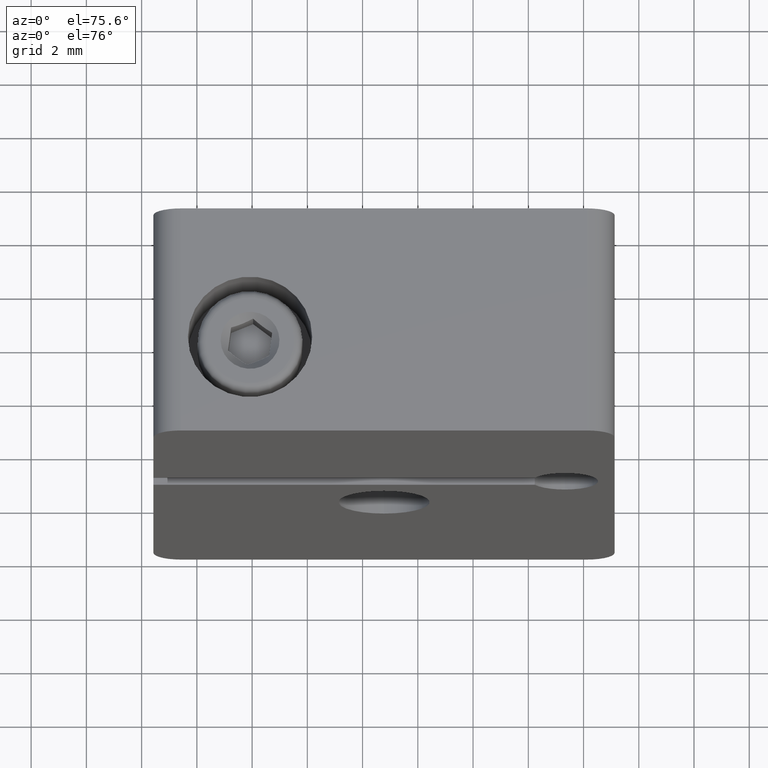
[diagram: clean part render]
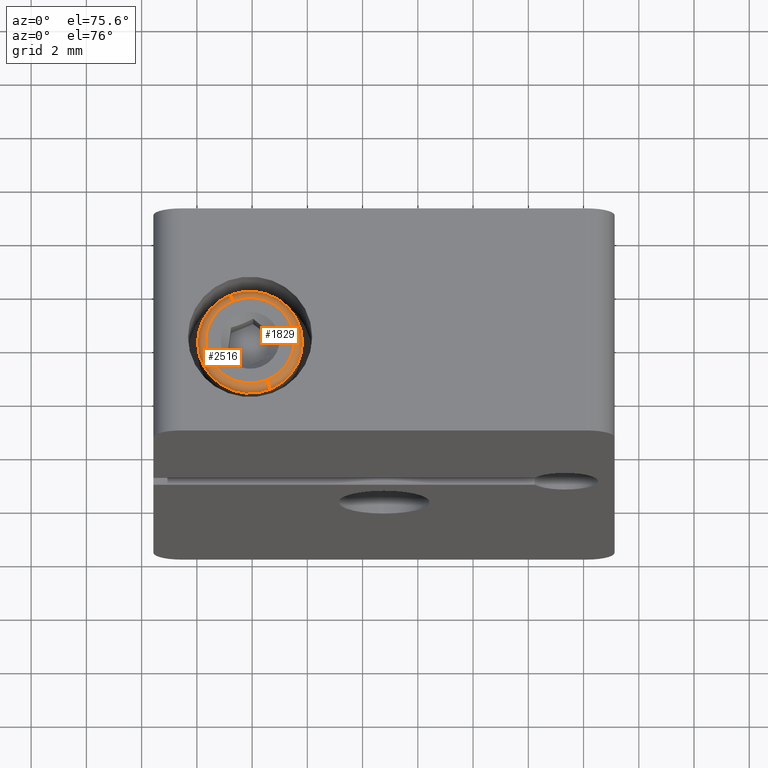
[diagram: same view with one multi-face feature highlighted, each face labeled with its STEP entity id]
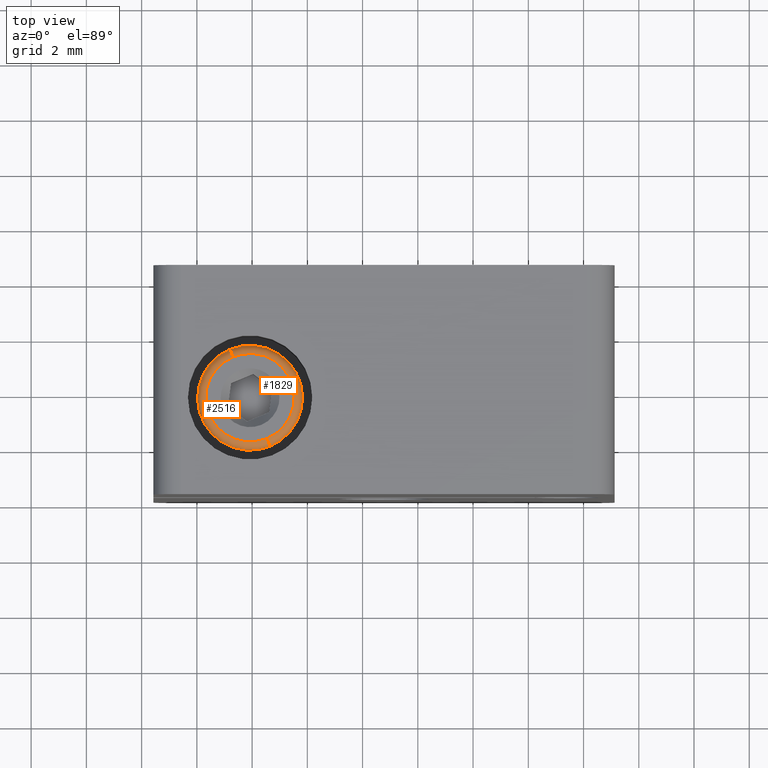
[diagram: same view with one multi-face feature highlighted, each face labeled with its STEP entity id]
A machine part, auxiliary view. The highlighted faces form ONE feature: a constant-radius fillet chain: 2 tangent blend faces with common blend radius 0.3 mm. The faces share edges in the B-rep.
A second angle (top view) of the same feature is appended — it is thin or edge-on in the first view.
Their STEP definitions:
[1] entity #2516 (Torus):
#16 = AXIS2_PLACEMENT_3D ( 'NONE', #714, #756, #2334 ) ;
#148 = EDGE_CURVE ( 'NONE', #622, #1344, #607, .T. ) ;
#152 = CARTESIAN_POINT ( 'NONE',  ( 0.000000000000000000, 1.700000000000000178, 0.000000000000000000 ) ) ;
#157 = DIRECTION ( 'NONE',  ( 0.000000000000000000, 0.000000000000000000, 1.000000000000000000 ) ) ;
#182 = DIRECTION ( 'NONE',  ( 0.000000000000000000, 1.000000000000000000, 0.000000000000000000 ) ) ;
#316 = CARTESIAN_POINT ( 'NONE',  ( 2.326828918379970872E-16, 1.700000000000000178, 1.899999999999999689 ) ) ;
#358 = AXIS2_PLACEMENT_3D ( 'NONE', #555, #2430, #1770 ) ;
#520 = VERTEX_POINT ( 'NONE', #2351 ) ;
#543 = EDGE_CURVE ( 'NONE', #1856, #622, #2599, .T. ) ;
#555 = CARTESIAN_POINT ( 'NONE',  ( 0.000000000000000000, 2.000000000000000000, 0.000000000000000000 ) ) ;
#607 = CIRCLE ( 'NONE', #358, 1.599999999999999867 ) ;
#622 = VERTEX_POINT ( 'NONE', #1705 ) ;
#625 = ORIENTED_EDGE ( 'NONE', *, *, #1349, .T. ) ;
#690 = ORIENTED_EDGE ( 'NONE', *, *, #543, .F. ) ;
#714 = CARTESIAN_POINT ( 'NONE',  ( 0.000000000000000000, 1.700000000000000178, 1.599999999999999867 ) ) ;
#725 = DIRECTION ( 'NONE',  ( 1.224646799147353947E-16, 0.000000000000000000, -1.000000000000000000 ) ) ;
#756 = DIRECTION ( 'NONE',  ( -1.000000000000000000, 0.000000000000000000, 0.000000000000000000 ) ) ;
#949 = CARTESIAN_POINT ( 'NONE',  ( 2.143131898507867804E-16, 2.000000000000000000, -1.599999999999999867 ) ) ;
#1344 = VERTEX_POINT ( 'NONE', #949 ) ;
#1349 = EDGE_CURVE ( 'NONE', #520, #1344, #2937, .T. ) ;
#1459 = EDGE_LOOP ( 'NONE', ( #2593, #625, #1588, #690 ) ) ;
#1575 = DIRECTION ( 'NONE',  ( 0.000000000000000000, 0.000000000000000000, 1.000000000000000000 ) ) ;
#1588 = ORIENTED_EDGE ( 'NONE', *, *, #148, .F. ) ;
#1705 = CARTESIAN_POINT ( 'NONE',  ( 0.000000000000000000, 2.000000000000000000, 1.599999999999999867 ) ) ;
#1770 = DIRECTION ( 'NONE',  ( 0.000000000000000000, 0.000000000000000000, 1.000000000000000000 ) ) ;
#1824 = TOROIDAL_SURFACE ( 'NONE', #3073, 1.599999999999999867, 0.2999999999999999889 ) ;
#1856 = VERTEX_POINT ( 'NONE', #316 ) ;
#1911 = DIRECTION ( 'NONE',  ( 1.000000000000000000, -0.000000000000000000, 1.224646799147353207E-16 ) ) ;
#2019 = EDGE_CURVE ( 'NONE', #520, #1856, #2827, .T. ) ;
#2029 = AXIS2_PLACEMENT_3D ( 'NONE', #2807, #3054, #157 ) ;
#2145 = CARTESIAN_POINT ( 'NONE',  ( 1.959434878635764984E-16, 1.700000000000000178, -1.599999999999999867 ) ) ;
#2288 = FACE_OUTER_BOUND ( 'NONE', #1459, .T. ) ;
#2334 = DIRECTION ( 'NONE',  ( 0.000000000000000000, 0.000000000000000000, 1.000000000000000000 ) ) ;
#2351 = CARTESIAN_POINT ( 'NONE',  ( 0.000000000000000000, 1.700000000000000178, -1.899999999999999689 ) ) ;
#2430 = DIRECTION ( 'NONE',  ( 0.000000000000000000, 1.000000000000000000, 0.000000000000000000 ) ) ;
#2516 = ADVANCED_FACE ( 'NONE', ( #2288 ), #1824, .T. ) ;
#2593 = ORIENTED_EDGE ( 'NONE', *, *, #2019, .F. ) ;
#2599 = CIRCLE ( 'NONE', #16, 0.2999999999999999334 ) ;
#2687 = AXIS2_PLACEMENT_3D ( 'NONE', #2145, #1911, #725 ) ;
#2807 = CARTESIAN_POINT ( 'NONE',  ( 0.000000000000000000, 1.700000000000000178, 0.000000000000000000 ) ) ;
#2827 = CIRCLE ( 'NONE', #2029, 1.899999999999999689 ) ;
#2937 = CIRCLE ( 'NONE', #2687, 0.2999999999999999334 ) ;
#3054 = DIRECTION ( 'NONE',  ( -0.000000000000000000, -1.000000000000000000, -0.000000000000000000 ) ) ;
#3073 = AXIS2_PLACEMENT_3D ( 'NONE', #152, #182, #1575 ) ;
[2] entity #1829 (Torus):
#16 = AXIS2_PLACEMENT_3D ( 'NONE', #714, #756, #2334 ) ;
#101 = DIRECTION ( 'NONE',  ( 0.000000000000000000, 1.000000000000000000, 0.000000000000000000 ) ) ;
#167 = DIRECTION ( 'NONE',  ( 0.000000000000000000, 0.000000000000000000, 1.000000000000000000 ) ) ;
#316 = CARTESIAN_POINT ( 'NONE',  ( 2.326828918379970872E-16, 1.700000000000000178, 1.899999999999999689 ) ) ;
#392 = CARTESIAN_POINT ( 'NONE',  ( 0.000000000000000000, 2.000000000000000000, 0.000000000000000000 ) ) ;
#520 = VERTEX_POINT ( 'NONE', #2351 ) ;
#543 = EDGE_CURVE ( 'NONE', #1856, #622, #2599, .T. ) ;
#622 = VERTEX_POINT ( 'NONE', #1705 ) ;
#630 = CIRCLE ( 'NONE', #930, 1.599999999999999867 ) ;
#675 = ORIENTED_EDGE ( 'NONE', *, *, #1349, .F. ) ;
#714 = CARTESIAN_POINT ( 'NONE',  ( 0.000000000000000000, 1.700000000000000178, 1.599999999999999867 ) ) ;
#725 = DIRECTION ( 'NONE',  ( 1.224646799147353947E-16, 0.000000000000000000, -1.000000000000000000 ) ) ;
#756 = DIRECTION ( 'NONE',  ( -1.000000000000000000, 0.000000000000000000, 0.000000000000000000 ) ) ;
#843 = AXIS2_PLACEMENT_3D ( 'NONE', #1329, #1598, #2323 ) ;
#930 = AXIS2_PLACEMENT_3D ( 'NONE', #392, #1334, #167 ) ;
#949 = CARTESIAN_POINT ( 'NONE',  ( 2.143131898507867804E-16, 2.000000000000000000, -1.599999999999999867 ) ) ;
#997 = CIRCLE ( 'NONE', #843, 1.899999999999999689 ) ;
#1095 = EDGE_CURVE ( 'NONE', #1856, #520, #997, .T. ) ;
#1286 = ORIENTED_EDGE ( 'NONE', *, *, #1095, .F. ) ;
#1329 = CARTESIAN_POINT ( 'NONE',  ( 0.000000000000000000, 1.700000000000000178, 0.000000000000000000 ) ) ;
#1334 = DIRECTION ( 'NONE',  ( 0.000000000000000000, 1.000000000000000000, 0.000000000000000000 ) ) ;
#1344 = VERTEX_POINT ( 'NONE', #949 ) ;
#1349 = EDGE_CURVE ( 'NONE', #520, #1344, #2937, .T. ) ;
#1450 = EDGE_LOOP ( 'NONE', ( #675, #1286, #2706, #2598 ) ) ;
#1502 = FACE_OUTER_BOUND ( 'NONE', #1450, .T. ) ;
#1598 = DIRECTION ( 'NONE',  ( -0.000000000000000000, -1.000000000000000000, -0.000000000000000000 ) ) ;
#1705 = CARTESIAN_POINT ( 'NONE',  ( 0.000000000000000000, 2.000000000000000000, 1.599999999999999867 ) ) ;
#1829 = ADVANCED_FACE ( 'NONE', ( #1502 ), #2798, .T. ) ;
#1856 = VERTEX_POINT ( 'NONE', #316 ) ;
#1911 = DIRECTION ( 'NONE',  ( 1.000000000000000000, -0.000000000000000000, 1.224646799147353207E-16 ) ) ;
#1965 = DIRECTION ( 'NONE',  ( 0.000000000000000000, 0.000000000000000000, 1.000000000000000000 ) ) ;
#2145 = CARTESIAN_POINT ( 'NONE',  ( 1.959434878635764984E-16, 1.700000000000000178, -1.599999999999999867 ) ) ;
#2323 = DIRECTION ( 'NONE',  ( 0.000000000000000000, 0.000000000000000000, 1.000000000000000000 ) ) ;
#2334 = DIRECTION ( 'NONE',  ( 0.000000000000000000, 0.000000000000000000, 1.000000000000000000 ) ) ;
#2351 = CARTESIAN_POINT ( 'NONE',  ( 0.000000000000000000, 1.700000000000000178, -1.899999999999999689 ) ) ;
#2454 = CARTESIAN_POINT ( 'NONE',  ( 0.000000000000000000, 1.700000000000000178, 0.000000000000000000 ) ) ;
#2520 = EDGE_CURVE ( 'NONE', #1344, #622, #630, .T. ) ;
#2598 = ORIENTED_EDGE ( 'NONE', *, *, #2520, .F. ) ;
#2599 = CIRCLE ( 'NONE', #16, 0.2999999999999999334 ) ;
#2687 = AXIS2_PLACEMENT_3D ( 'NONE', #2145, #1911, #725 ) ;
#2706 = ORIENTED_EDGE ( 'NONE', *, *, #543, .T. ) ;
#2798 = TOROIDAL_SURFACE ( 'NONE', #2990, 1.599999999999999867, 0.2999999999999999889 ) ;
#2937 = CIRCLE ( 'NONE', #2687, 0.2999999999999999334 ) ;
#2990 = AXIS2_PLACEMENT_3D ( 'NONE', #2454, #101, #1965 ) ;